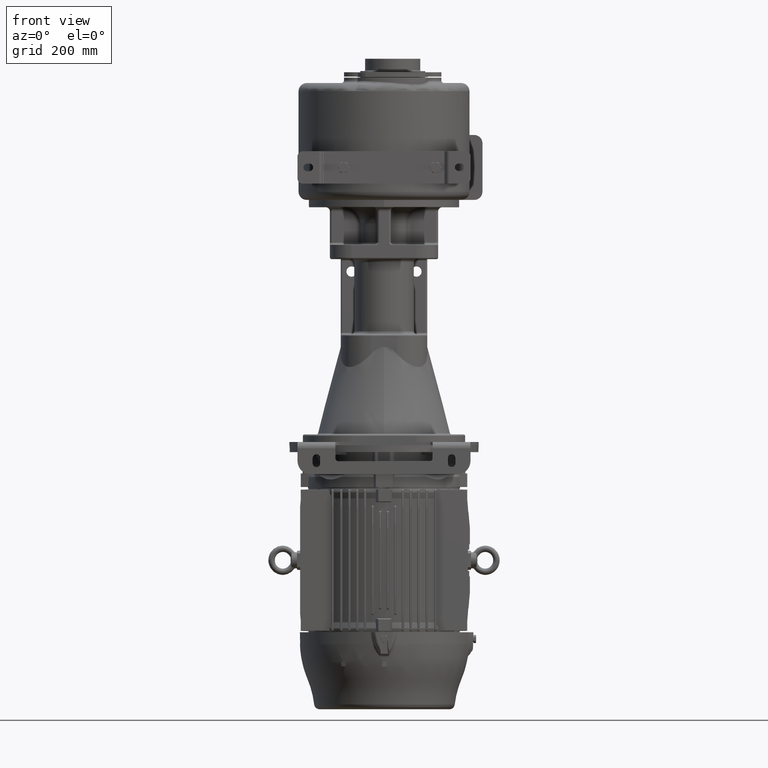
[diagram: clean part render]
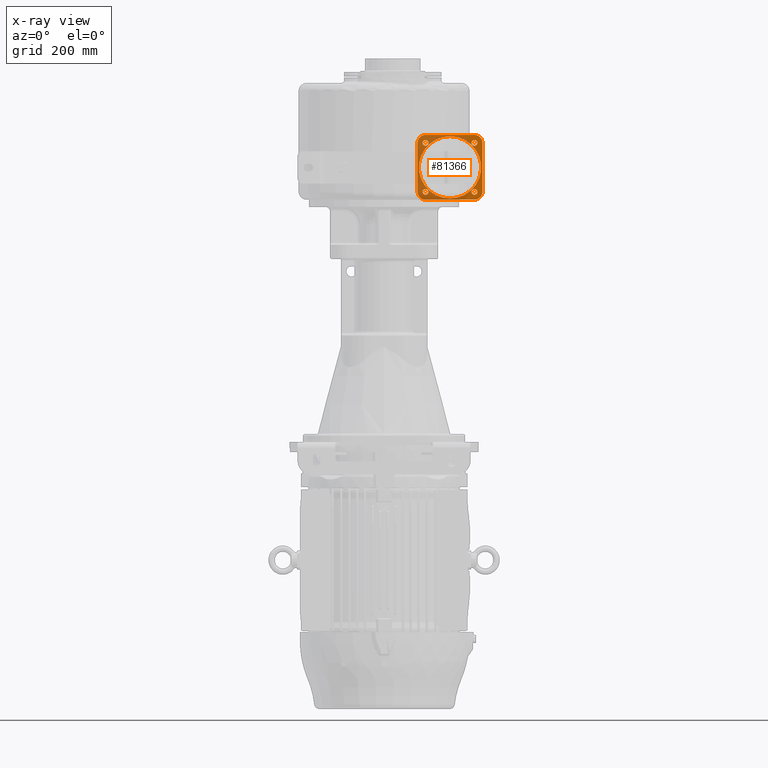
[diagram: x-ray — body ghosted, one internal face saturated and labeled with its STEP entity id]
A machine part, front view, then the same camera in x-ray: the body is ghosted and one INTERNAL B-rep face — a face not visible from any outside direction — is saturated and labeled: STEP entity #81366.
In plain terms, the highlighted planar face has unit normal (0, 1, 0).
Its self-contained STEP definition (entity closure, byte-faithful):
#25970=CARTESIAN_POINT('',(7.7E1,3.85E2,4.5E1));
#25971=DIRECTION('',(0.E0,1.E0,0.E0));
#25972=DIRECTION('',(-1.E0,0.E0,0.E0));
#25973=AXIS2_PLACEMENT_3D('',#25970,#25971,#25972);
#25975=DIRECTION('',(0.E0,0.E0,1.E0));
#25976=VECTOR('',#25975,9.E1);
#25977=CARTESIAN_POINT('',(6.2E1,3.85E2,-4.5E1));
#25978=LINE('',#25977,#25976);
#25979=CARTESIAN_POINT('',(7.7E1,3.85E2,-4.5E1));
#25980=DIRECTION('',(0.E0,1.E0,0.E0));
#25981=DIRECTION('',(0.E0,0.E0,-1.E0));
#25982=AXIS2_PLACEMENT_3D('',#25979,#25980,#25981);
#25984=DIRECTION('',(-1.E0,0.E0,0.E0));
#25985=VECTOR('',#25984,9.E1);
#25986=CARTESIAN_POINT('',(1.67E2,3.85E2,-6.E1));
#25987=LINE('',#25986,#25985);
#25988=CARTESIAN_POINT('',(1.67E2,3.85E2,-4.5E1));
#25989=DIRECTION('',(0.E0,1.E0,0.E0));
#25990=DIRECTION('',(1.E0,0.E0,0.E0));
#25991=AXIS2_PLACEMENT_3D('',#25988,#25989,#25990);
#25993=DIRECTION('',(0.E0,0.E0,-1.E0));
#25994=VECTOR('',#25993,9.E1);
#25995=CARTESIAN_POINT('',(1.82E2,3.85E2,4.5E1));
#25996=LINE('',#25995,#25994);
#25997=CARTESIAN_POINT('',(1.67E2,3.85E2,4.5E1));
#25998=DIRECTION('',(0.E0,1.E0,0.E0));
#25999=DIRECTION('',(0.E0,0.E0,1.E0));
#26000=AXIS2_PLACEMENT_3D('',#25997,#25998,#25999);
#26002=DIRECTION('',(1.E0,0.E0,0.E0));
#26003=VECTOR('',#26002,9.E1);
#26004=CARTESIAN_POINT('',(7.7E1,3.85E2,6.E1));
#26005=LINE('',#26004,#26003);
#26006=CARTESIAN_POINT('',(7.674516600406E1,3.85E2,-4.525483399594E1));
#26007=DIRECTION('',(0.E0,-1.E0,0.E0));
#26008=DIRECTION('',(0.E0,0.E0,1.E0));
#26009=AXIS2_PLACEMENT_3D('',#26006,#26007,#26008);
#26011=CARTESIAN_POINT('',(7.674516600406E1,3.85E2,-4.525483399594E1));
#26012=DIRECTION('',(0.E0,-1.E0,0.E0));
#26013=DIRECTION('',(0.E0,0.E0,-1.E0));
#26014=AXIS2_PLACEMENT_3D('',#26011,#26012,#26013);
#26016=CARTESIAN_POINT('',(1.672548339959E2,3.85E2,-4.525483399594E1));
#26017=DIRECTION('',(0.E0,-1.E0,0.E0));
#26018=DIRECTION('',(-1.E0,0.E0,0.E0));
#26019=AXIS2_PLACEMENT_3D('',#26016,#26017,#26018);
#26021=CARTESIAN_POINT('',(1.672548339959E2,3.85E2,-4.525483399594E1));
#26022=DIRECTION('',(0.E0,-1.E0,0.E0));
#26023=DIRECTION('',(1.E0,0.E0,0.E0));
#26024=AXIS2_PLACEMENT_3D('',#26021,#26022,#26023);
#26026=CARTESIAN_POINT('',(1.672548339959E2,3.85E2,4.525483399594E1));
#26027=DIRECTION('',(0.E0,-1.E0,0.E0));
#26028=DIRECTION('',(0.E0,0.E0,-1.E0));
#26029=AXIS2_PLACEMENT_3D('',#26026,#26027,#26028);
#26031=CARTESIAN_POINT('',(1.672548339959E2,3.85E2,4.525483399594E1));
#26032=DIRECTION('',(0.E0,-1.E0,0.E0));
#26033=DIRECTION('',(0.E0,0.E0,1.E0));
#26034=AXIS2_PLACEMENT_3D('',#26031,#26032,#26033);
#26036=CARTESIAN_POINT('',(7.674516600406E1,3.85E2,4.525483399594E1));
#26037=DIRECTION('',(0.E0,-1.E0,0.E0));
#26038=DIRECTION('',(1.E0,0.E0,0.E0));
#26039=AXIS2_PLACEMENT_3D('',#26036,#26037,#26038);
#26041=CARTESIAN_POINT('',(7.674516600406E1,3.85E2,4.525483399594E1));
#26042=DIRECTION('',(0.E0,-1.E0,0.E0));
#26043=DIRECTION('',(-1.E0,0.E0,0.E0));
#26044=AXIS2_PLACEMENT_3D('',#26041,#26042,#26043);
#26046=CARTESIAN_POINT('',(1.22E2,3.85E2,0.E0));
#26047=DIRECTION('',(0.E0,1.E0,0.E0));
#26048=DIRECTION('',(0.E0,0.E0,1.E0));
#26049=AXIS2_PLACEMENT_3D('',#26046,#26047,#26048);
#26051=CARTESIAN_POINT('',(1.22E2,3.85E2,0.E0));
#26052=DIRECTION('',(0.E0,1.E0,0.E0));
#26053=DIRECTION('',(0.E0,0.E0,-1.E0));
#26054=AXIS2_PLACEMENT_3D('',#26051,#26052,#26053);
#43241=CARTESIAN_POINT('',(6.2E1,3.85E2,4.5E1));
#43242=CARTESIAN_POINT('',(7.7E1,3.85E2,6.E1));
#43243=VERTEX_POINT('',#43241);
#43244=VERTEX_POINT('',#43242);
#43245=CARTESIAN_POINT('',(7.7E1,3.85E2,-6.E1));
#43246=CARTESIAN_POINT('',(6.2E1,3.85E2,-4.5E1));
#43247=VERTEX_POINT('',#43245);
#43248=VERTEX_POINT('',#43246);
#43249=CARTESIAN_POINT('',(1.67E2,3.85E2,6.E1));
#43250=CARTESIAN_POINT('',(1.82E2,3.85E2,4.5E1));
#43251=VERTEX_POINT('',#43249);
#43252=VERTEX_POINT('',#43250);
#43253=CARTESIAN_POINT('',(1.82E2,3.85E2,-4.5E1));
#43254=VERTEX_POINT('',#43253);
#43255=CARTESIAN_POINT('',(1.67E2,3.85E2,-6.E1));
#43256=VERTEX_POINT('',#43255);
#43257=CARTESIAN_POINT('',(7.674516600406E1,3.85E2,-3.975483399594E1));
#43258=CARTESIAN_POINT('',(7.674516600406E1,3.85E2,-5.075483399594E1));
#43259=VERTEX_POINT('',#43257);
#43260=VERTEX_POINT('',#43258);
#43261=CARTESIAN_POINT('',(1.617548339959E2,3.85E2,-4.525483399594E1));
#43262=CARTESIAN_POINT('',(1.727548339959E2,3.85E2,-4.525483399594E1));
#43263=VERTEX_POINT('',#43261);
#43264=VERTEX_POINT('',#43262);
#43265=CARTESIAN_POINT('',(1.672548339959E2,3.85E2,3.975483399594E1));
#43266=CARTESIAN_POINT('',(1.672548339959E2,3.85E2,5.075483399594E1));
#43267=VERTEX_POINT('',#43265);
#43268=VERTEX_POINT('',#43266);
#43269=CARTESIAN_POINT('',(8.224516600406E1,3.85E2,4.525483399594E1));
#43270=CARTESIAN_POINT('',(7.124516600406E1,3.85E2,4.525483399594E1));
#43271=VERTEX_POINT('',#43269);
#43272=VERTEX_POINT('',#43270);
#43385=CARTESIAN_POINT('',(1.22E2,3.85E2,5.75E1));
#43386=CARTESIAN_POINT('',(1.22E2,3.85E2,-5.75E1));
#43387=VERTEX_POINT('',#43385);
#43388=VERTEX_POINT('',#43386);
#81321=CARTESIAN_POINT('',(1.22E2,3.85E2,0.E0));
#81322=DIRECTION('',(0.E0,1.E0,0.E0));
#81323=DIRECTION('',(0.E0,0.E0,-1.E0));
#81324=AXIS2_PLACEMENT_3D('',#81321,#81322,#81323);
#81325=PLANE('',#81324);
#81326=ORIENTED_EDGE('',*,*,#81299,.F.);
#81327=ORIENTED_EDGE('',*,*,#81314,.F.);
#81328=ORIENTED_EDGE('',*,*,#81212,.F.);
#81329=ORIENTED_EDGE('',*,*,#81229,.F.);
#81330=ORIENTED_EDGE('',*,*,#81243,.F.);
#81331=ORIENTED_EDGE('',*,*,#81257,.F.);
#81332=ORIENTED_EDGE('',*,*,#81271,.F.);
#81333=ORIENTED_EDGE('',*,*,#81285,.F.);
#81334=EDGE_LOOP('',(#81326,#81327,#81328,#81329,#81330,#81331,#81332,#81333));
#81335=FACE_OUTER_BOUND('',#81334,.F.);
#81337=ORIENTED_EDGE('',*,*,#81336,.F.);
#81339=ORIENTED_EDGE('',*,*,#81338,.F.);
#81340=EDGE_LOOP('',(#81337,#81339));
#81341=FACE_BOUND('',#81340,.F.);
#81343=ORIENTED_EDGE('',*,*,#81342,.F.);
#81345=ORIENTED_EDGE('',*,*,#81344,.F.);
#81346=EDGE_LOOP('',(#81343,#81345));
#81347=FACE_BOUND('',#81346,.F.);
#81349=ORIENTED_EDGE('',*,*,#81348,.F.);
#81351=ORIENTED_EDGE('',*,*,#81350,.F.);
#81352=EDGE_LOOP('',(#81349,#81351));
#81353=FACE_BOUND('',#81352,.F.);
#81355=ORIENTED_EDGE('',*,*,#81354,.F.);
#81357=ORIENTED_EDGE('',*,*,#81356,.F.);
#81358=EDGE_LOOP('',(#81355,#81357));
#81359=FACE_BOUND('',#81358,.F.);
#81361=ORIENTED_EDGE('',*,*,#81360,.T.);
#81363=ORIENTED_EDGE('',*,*,#81362,.T.);
#81364=EDGE_LOOP('',(#81361,#81363));
#81365=FACE_BOUND('',#81364,.F.);
#81366=ADVANCED_FACE('',(#81335,#81341,#81347,#81353,#81359,#81365),#81325,.T.);
#25974=CIRCLE('',#25973,1.5E1);
#25983=CIRCLE('',#25982,1.5E1);
#25992=CIRCLE('',#25991,1.5E1);
#26001=CIRCLE('',#26000,1.5E1);
#26010=CIRCLE('',#26009,5.5E0);
#26015=CIRCLE('',#26014,5.5E0);
#26020=CIRCLE('',#26019,5.5E0);
#26025=CIRCLE('',#26024,5.5E0);
#26030=CIRCLE('',#26029,5.5E0);
#26035=CIRCLE('',#26034,5.5E0);
#26040=CIRCLE('',#26039,5.5E0);
#26045=CIRCLE('',#26044,5.5E0);
#26050=CIRCLE('',#26049,5.75E1);
#26055=CIRCLE('',#26054,5.75E1);
#81212=EDGE_CURVE('',#43247,#43248,#25983,.T.);
#81229=EDGE_CURVE('',#43256,#43247,#25987,.T.);
#81243=EDGE_CURVE('',#43254,#43256,#25992,.T.);
#81257=EDGE_CURVE('',#43252,#43254,#25996,.T.);
#81271=EDGE_CURVE('',#43251,#43252,#26001,.T.);
#81285=EDGE_CURVE('',#43244,#43251,#26005,.T.);
#81299=EDGE_CURVE('',#43243,#43244,#25974,.T.);
#81314=EDGE_CURVE('',#43248,#43243,#25978,.T.);
#81336=EDGE_CURVE('',#43259,#43260,#26010,.T.);
#81338=EDGE_CURVE('',#43260,#43259,#26015,.T.);
#81342=EDGE_CURVE('',#43263,#43264,#26020,.T.);
#81344=EDGE_CURVE('',#43264,#43263,#26025,.T.);
#81348=EDGE_CURVE('',#43267,#43268,#26030,.T.);
#81350=EDGE_CURVE('',#43268,#43267,#26035,.T.);
#81354=EDGE_CURVE('',#43271,#43272,#26040,.T.);
#81356=EDGE_CURVE('',#43272,#43271,#26045,.T.);
#81360=EDGE_CURVE('',#43387,#43388,#26050,.T.);
#81362=EDGE_CURVE('',#43388,#43387,#26055,.T.);